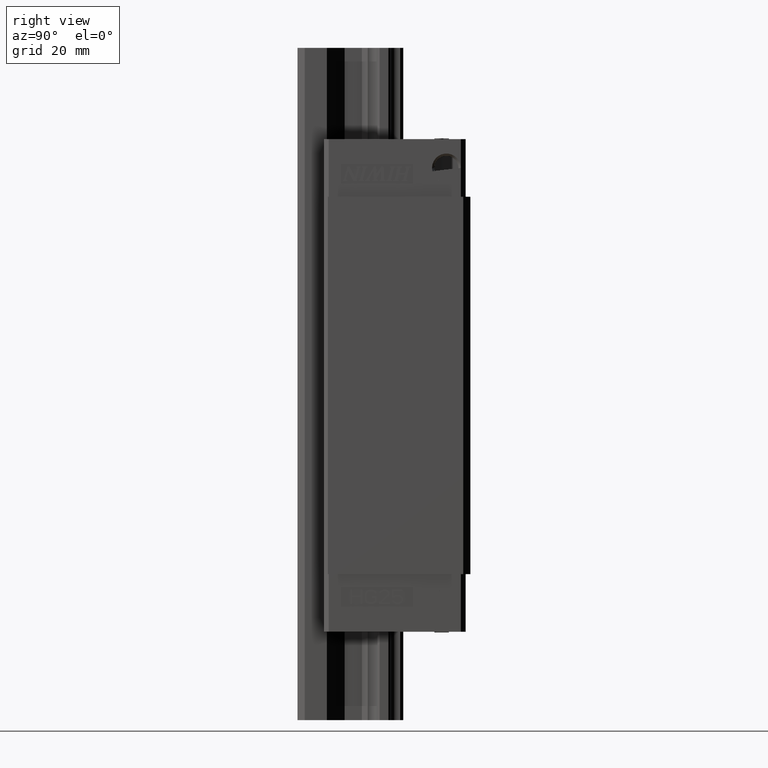
[diagram: clean part render]
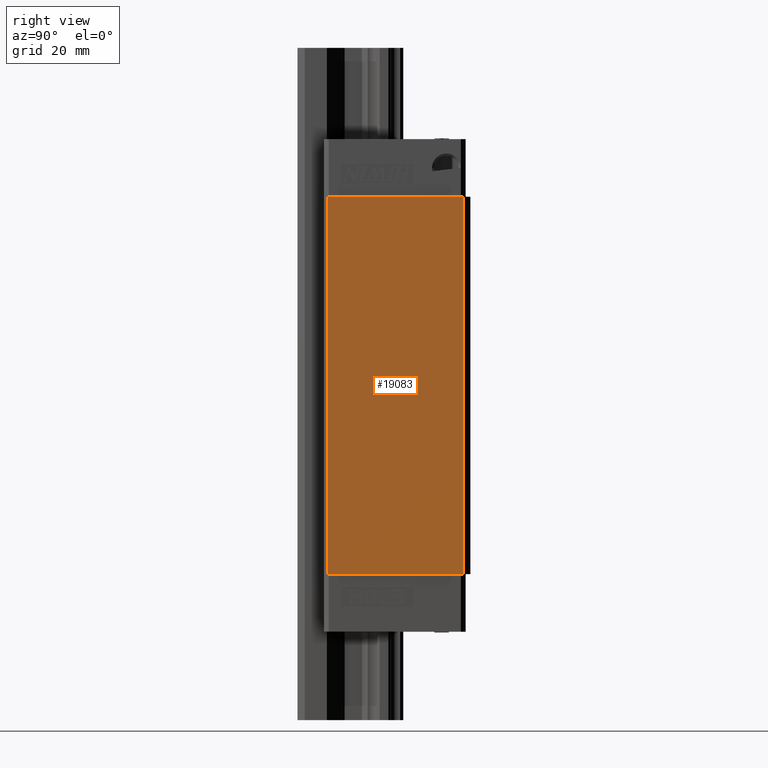
[diagram: same view with one face highlighted and labeled with its STEP entity id]
A machine part, right view. The second image highlights one B-rep face of the part: STEP entity #19083.
In plain terms, the highlighted planar face has unit normal (1, -0, 0).
Its self-contained STEP definition (entity closure, byte-faithful):
#1017=DIRECTION('',(0.E0,1.E0,0.E0));
#1018=VECTOR('',#1017,2.82E1);
#1019=CARTESIAN_POINT('',(2.4E1,-1.57E1,0.E0));
#1020=LINE('',#1019,#1018);
#1025=DIRECTION('',(0.E0,0.E0,1.E0));
#1026=VECTOR('',#1025,7.86E1);
#1027=CARTESIAN_POINT('',(2.4E1,1.25E1,-7.86E1));
#1028=LINE('',#1027,#1026);
#1141=DIRECTION('',(0.E0,1.E0,0.E0));
#1142=VECTOR('',#1141,2.82E1);
#1143=CARTESIAN_POINT('',(2.4E1,-1.57E1,-7.86E1));
#1144=LINE('',#1143,#1142);
#2991=DIRECTION('',(0.E0,0.E0,-1.E0));
#2992=VECTOR('',#2991,7.86E1);
#2993=CARTESIAN_POINT('',(2.4E1,-1.57E1,0.E0));
#2994=LINE('',#2993,#2992);
#14593=CARTESIAN_POINT('',(2.4E1,-1.57E1,0.E0));
#14594=CARTESIAN_POINT('',(2.4E1,1.25E1,0.E0));
#14595=VERTEX_POINT('',#14593);
#14596=VERTEX_POINT('',#14594);
#14645=CARTESIAN_POINT('',(2.4E1,1.25E1,-7.86E1));
#14646=VERTEX_POINT('',#14645);
#14647=CARTESIAN_POINT('',(2.4E1,-1.57E1,-7.86E1));
#14648=VERTEX_POINT('',#14647);
#19069=CARTESIAN_POINT('',(2.4E1,9.E0,0.E0));
#19070=DIRECTION('',(1.E0,-1.196703554964E-14,0.E0));
#19071=DIRECTION('',(-1.196703554964E-14,-1.E0,0.E0));
#19072=AXIS2_PLACEMENT_3D('',#19069,#19070,#19071);
#19073=PLANE('',#19072);
#19074=ORIENTED_EDGE('',*,*,#19014,.T.);
#19076=ORIENTED_EDGE('',*,*,#19075,.F.);
#19078=ORIENTED_EDGE('',*,*,#19077,.F.);
#19080=ORIENTED_EDGE('',*,*,#19079,.F.);
#19081=EDGE_LOOP('',(#19074,#19076,#19078,#19080));
#19082=FACE_OUTER_BOUND('',#19081,.F.);
#19083=ADVANCED_FACE('',(#19082),#19073,.T.);
#19014=EDGE_CURVE('',#14595,#14596,#1020,.T.);
#19075=EDGE_CURVE('',#14646,#14596,#1028,.T.);
#19077=EDGE_CURVE('',#14648,#14646,#1144,.T.);
#19079=EDGE_CURVE('',#14595,#14648,#2994,.T.);